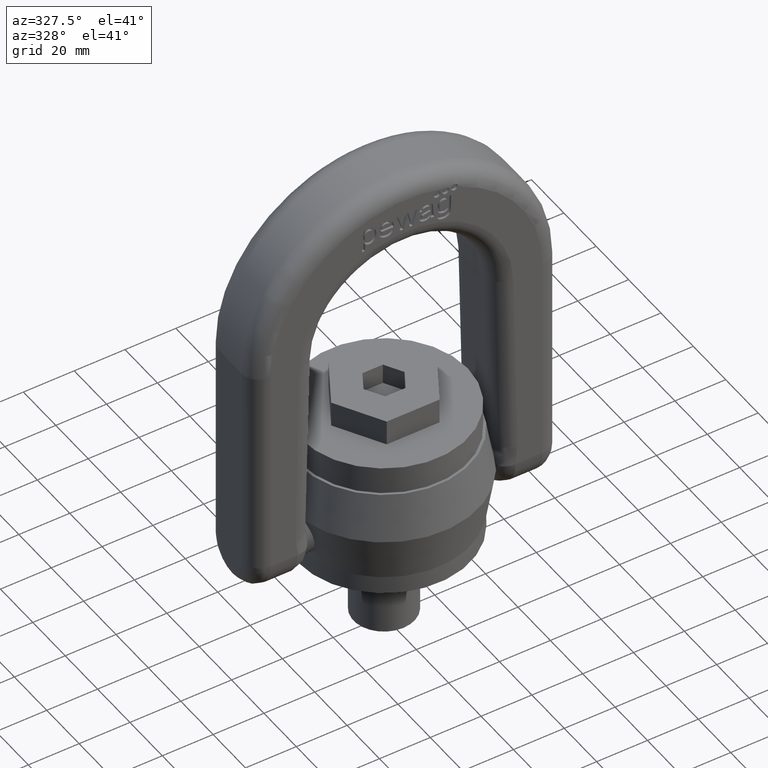
[diagram: clean part render]
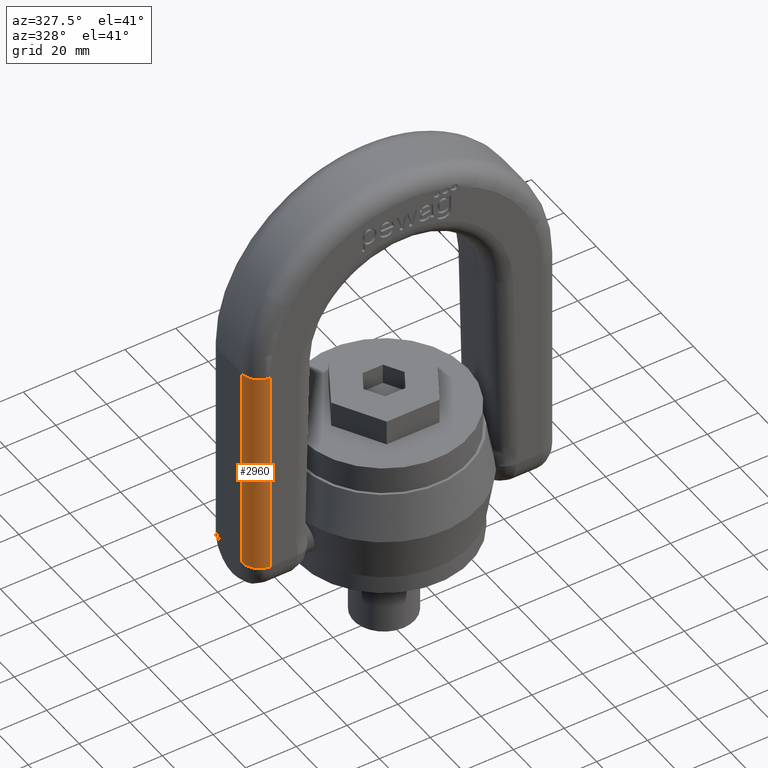
[diagram: same view with one face highlighted and labeled with its STEP entity id]
A machine part, auxiliary view. The second image highlights one B-rep face of the part: STEP entity #2960.
In plain terms, the highlighted cylindrical surface (edge-blend (fillet) strip) has radius 7 mm, axis along (-0, 0, -1).
Its self-contained STEP definition (entity closure, byte-faithful):
#1812=LINE('',#6947,#2094);
#1833=LINE('',#7054,#2115);
#2094=VECTOR('',#5951,1.);
#2115=VECTOR('',#5976,1.);
#2606=FACE_OUTER_BOUND('',#3320,.T.);
#2960=ADVANCED_FACE('',(#2606),#2993,.T.);
#2993=CYLINDRICAL_SURFACE('',#5779,7.);
#3320=EDGE_LOOP('',(#4459,#4460,#4461,#4462));
#4459=ORIENTED_EDGE('',*,*,#5526,.T.);
#4460=ORIENTED_EDGE('',*,*,#5045,.F.);
#4461=ORIENTED_EDGE('',*,*,#5527,.F.);
#4462=ORIENTED_EDGE('',*,*,#5077,.F.);
#4582=VERTEX_POINT('',#6727);
#4631=VERTEX_POINT('',#6946);
#4660=VERTEX_POINT('',#7048);
#4663=VERTEX_POINT('',#7053);
#5045=EDGE_CURVE('',#4631,#4582,#1812,.T.);
#5077=EDGE_CURVE('',#4663,#4660,#1833,.T.);
#5526=EDGE_CURVE('',#4663,#4582,#5582,.T.);
#5527=EDGE_CURVE('',#4660,#4631,#5583,.T.);
#5582=CIRCLE('',#5777,7.);
#5583=CIRCLE('',#5778,7.);
#5777=AXIS2_PLACEMENT_3D('',#9418,#6532,#6533);
#5778=AXIS2_PLACEMENT_3D('',#9435,#6534,#6535);
#5779=AXIS2_PLACEMENT_3D('',#9436,#6536,#6537);
#5951=DIRECTION('',(-9.29954853100969E-16,0.,-1.));
#5976=DIRECTION('',(9.29954853100969E-16,0.,1.));
#6532=DIRECTION('',(9.91270557701033E-16,4.95635278850516E-16,1.));
#6533=DIRECTION('',(1.,0.,-9.91270557701033E-16));
#6534=DIRECTION('',(0.,0.,1.));
#6535=DIRECTION('',(1.,0.,0.));
#6536=DIRECTION('',(-9.29954853100969E-16,0.,-1.));
#6537=DIRECTION('',(-1.,0.,0.));
#6727=CARTESIAN_POINT('',(-53.5,-14.,17.5000000000001));
#6946=CARTESIAN_POINT('',(-53.5,-14.,100.5));
#6947=CARTESIAN_POINT('',(-53.5,-14.,98.));
#7048=CARTESIAN_POINT('',(-60.5,-7.,100.5));
#7053=CARTESIAN_POINT('',(-60.5,-7.,17.5000000000001));
#7054=CARTESIAN_POINT('',(-60.5,-7.,100.5));
#9418=CARTESIAN_POINT('',(-53.5,-6.99999999999987,17.5000000000001));
#9435=CARTESIAN_POINT('',(-53.5,-7.,100.5));
#9436=CARTESIAN_POINT('',(-53.5,-7.,98.));